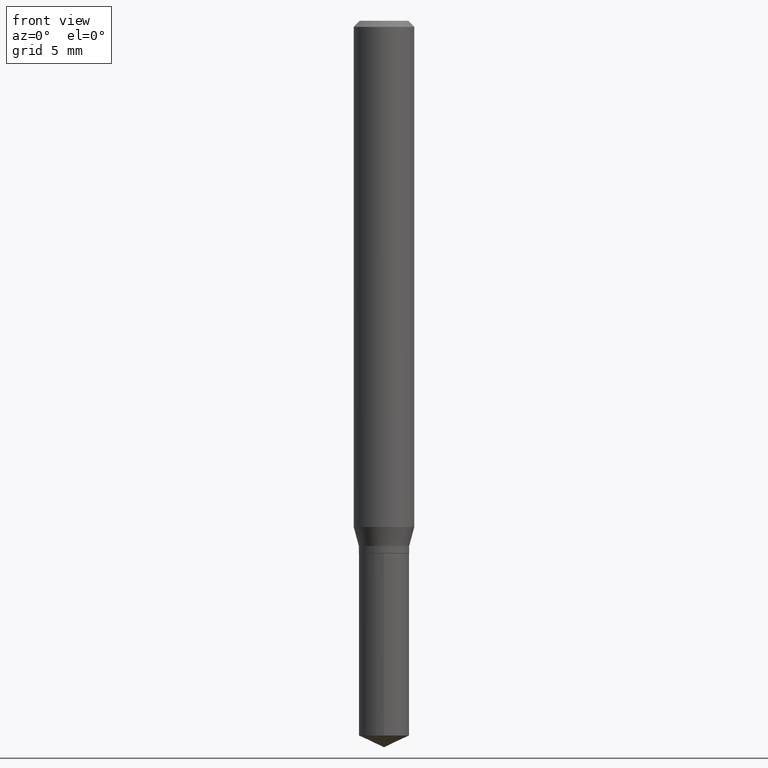
[diagram: clean part render]
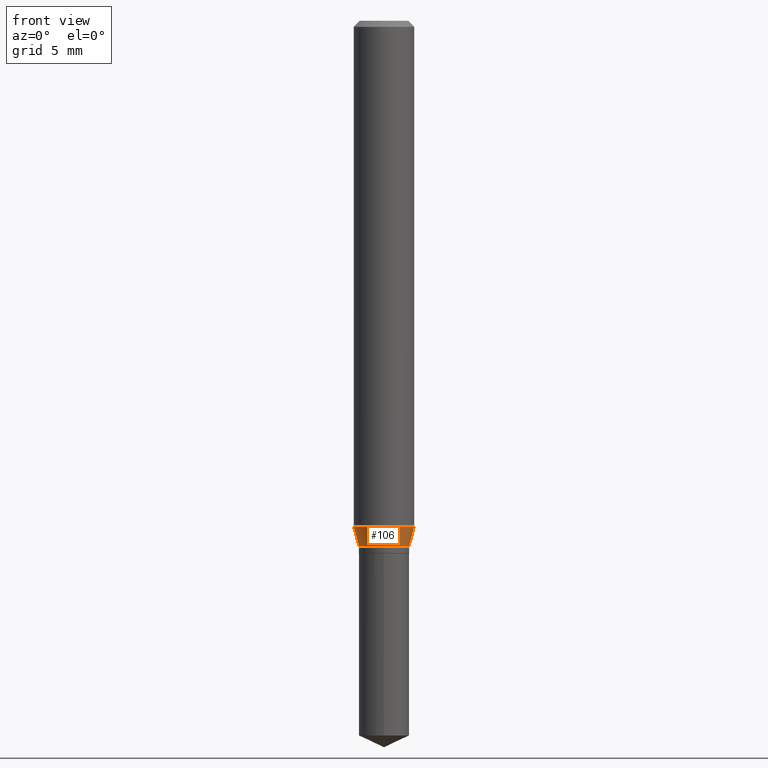
[diagram: same view with one face highlighted and labeled with its STEP entity id]
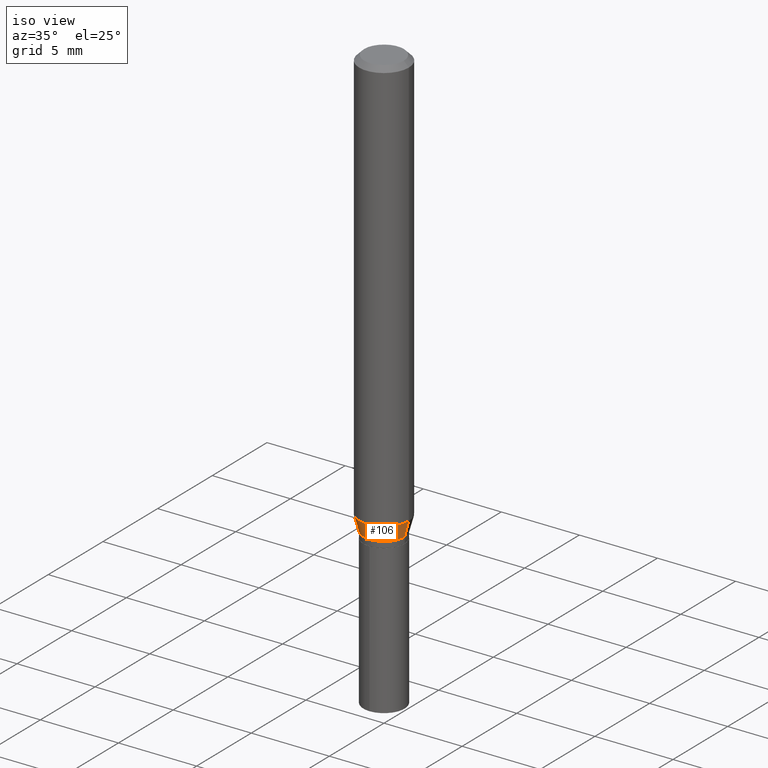
[diagram: same view with one face highlighted and labeled with its STEP entity id]
A machine part, front view. The second image highlights one B-rep face of the part: STEP entity #106.
A second angle (iso view) of the same face is appended — the face is thin or edge-on in the first view.
In plain terms, the highlighted conical surface has half-angle 15 deg.
Its self-contained STEP definition (entity closure, byte-faithful):
#2 = DIRECTION ( 'NONE',  ( 1.000000000000000000, -6.982962677686264344E-15, 0.000000000000000000 ) ) ;
#7 = CIRCLE ( 'NONE', #331, 0.06250000000000012490 ) ;
#12 = EDGE_CURVE ( 'NONE', #470, #13, #75, .T. ) ;
#13 = VERTEX_POINT ( 'NONE', #401 ) ;
#34 = FACE_OUTER_BOUND ( 'NONE', #241, .T. ) ;
#72 = DIRECTION ( 'NONE',  ( 1.000000000000000000, -6.982962677686269077E-15, 0.000000000000000000 ) ) ;
#75 = CIRCLE ( 'NONE', #361, 0.05199999999999999067 ) ;
#104 = ORIENTED_EDGE ( 'NONE', *, *, #486, .T. ) ;
#106 = ADVANCED_FACE ( 'NONE', ( #34 ), #292, .T. ) ;
#125 = CARTESIAN_POINT ( 'NONE',  ( -0.06250000000000012490, -3.205254103613909286E-15, -1.045213466520526380 ) ) ;
#144 = DIRECTION ( 'NONE',  ( -2.445468806185136597E-29, 3.491481338843145583E-15, 1.000000000000000000 ) ) ;
#160 = AXIS2_PLACEMENT_3D ( 'NONE', #264, #377, #72 ) ;
#171 = VECTOR ( 'NONE', #173, 39.37007874015748143 ) ;
#173 = DIRECTION ( 'NONE',  ( -0.2588190451025215721, 5.211531920934551831E-15, 0.9659258262890679791 ) ) ;
#174 = ORIENTED_EDGE ( 'NONE', *, *, #12, .T. ) ;
#189 = CARTESIAN_POINT ( 'NONE',  ( 0.06250000000000012490, -4.085778480819365543E-15, -1.045213466520526380 ) ) ;
#210 = DIRECTION ( 'NONE',  ( -2.445468806185136597E-29, 3.491481338843145583E-15, 1.000000000000000000 ) ) ;
#215 = ORIENTED_EDGE ( 'NONE', *, *, #261, .F. ) ;
#240 = LINE ( 'NONE', #308, #309 ) ;
#241 = EDGE_LOOP ( 'NONE', ( #215, #174, #104, #427 ) ) ;
#249 = CARTESIAN_POINT ( 'NONE',  ( 2.651866373427162025E-29, -3.786162363841507612E-15, -1.084400000000000031 ) ) ;
#261 = EDGE_CURVE ( 'NONE', #470, #289, #393, .T. ) ;
#264 = CARTESIAN_POINT ( 'NONE',  ( 2.651866373427162025E-29, -3.786162363841507612E-15, -1.084400000000000031 ) ) ;
#289 = VERTEX_POINT ( 'NONE', #125 ) ;
#292 = CONICAL_SURFACE ( 'NONE', #160, 0.05199999999999999067, 0.2617993877991502960 ) ;
#308 = CARTESIAN_POINT ( 'NONE',  ( 0.05199999999999999067, -4.149276423081192976E-15, -1.084400000000000031 ) ) ;
#309 = VECTOR ( 'NONE', #382, 39.37007874015748143 ) ;
#331 = AXIS2_PLACEMENT_3D ( 'NONE', #449, #144, #2 ) ;
#356 = EDGE_CURVE ( 'NONE', #289, #437, #7, .T. ) ;
#361 = AXIS2_PLACEMENT_3D ( 'NONE', #249, #210, #367 ) ;
#367 = DIRECTION ( 'NONE',  ( 1.000000000000000000, -6.982962677686269077E-15, 0.000000000000000000 ) ) ;
#377 = DIRECTION ( 'NONE',  ( -2.445468806185136597E-29, 3.491481338843145583E-15, 1.000000000000000000 ) ) ;
#382 = DIRECTION ( 'NONE',  ( 0.2588190451025215721, 1.565188264969619995E-15, 0.9659258262890679791 ) ) ;
#393 = LINE ( 'NONE', #439, #171 ) ;
#401 = CARTESIAN_POINT ( 'NONE',  ( 0.05199999999999999067, -4.149276423081192976E-15, -1.084400000000000031 ) ) ;
#408 = CARTESIAN_POINT ( 'NONE',  ( -0.05199999999999999067, -3.443040825354520286E-15, -1.084400000000000031 ) ) ;
#427 = ORIENTED_EDGE ( 'NONE', *, *, #356, .F. ) ;
#437 = VERTEX_POINT ( 'NONE', #189 ) ;
#439 = CARTESIAN_POINT ( 'NONE',  ( -0.05199999999999999067, -3.416680141246255188E-15, -1.084400000000000031 ) ) ;
#449 = CARTESIAN_POINT ( 'NONE',  ( 2.556036928180580217E-29, -3.649343313463973085E-15, -1.045213466520526380 ) ) ;
#470 = VERTEX_POINT ( 'NONE', #408 ) ;
#486 = EDGE_CURVE ( 'NONE', #13, #437, #240, .T. ) ;